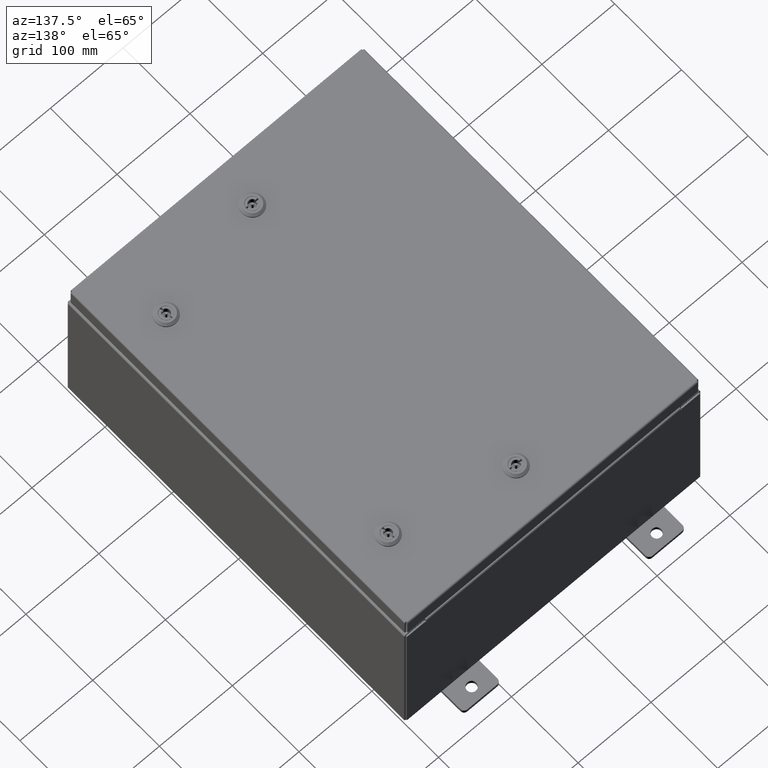
[diagram: clean part render]
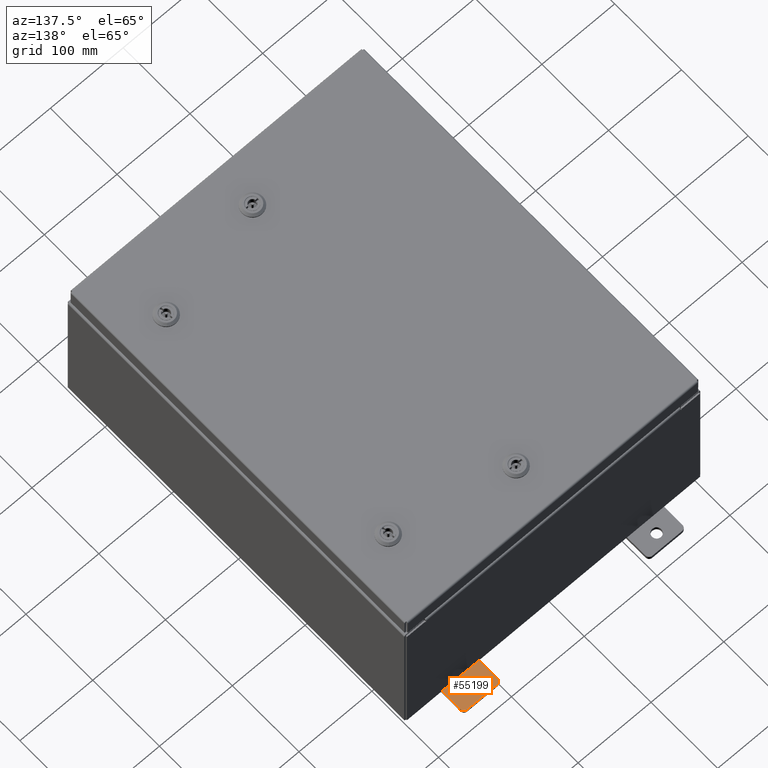
[diagram: same view with one face highlighted and labeled with its STEP entity id]
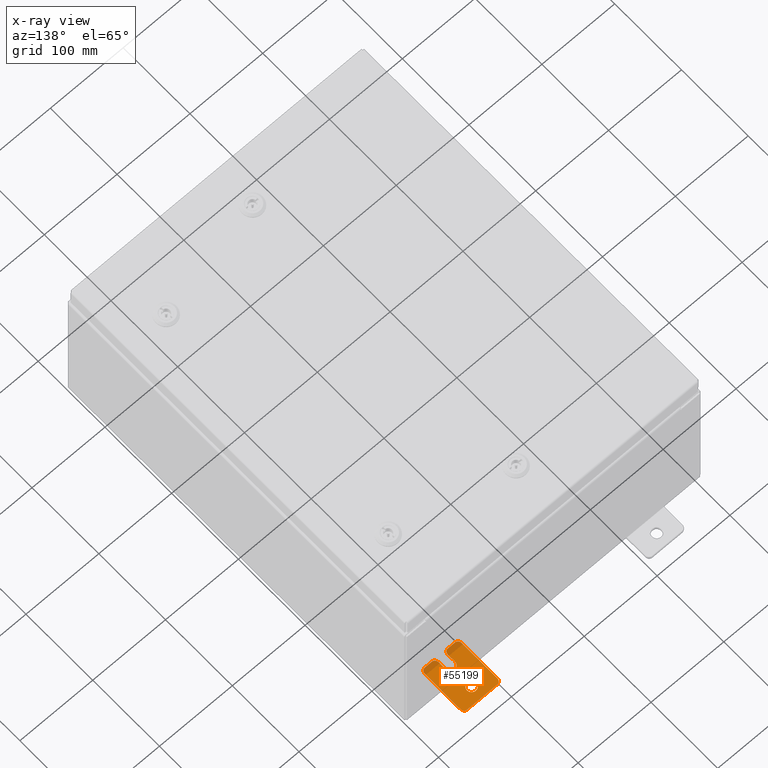
[diagram: x-ray of the same camera — body ghosted, the highlighted face saturated]
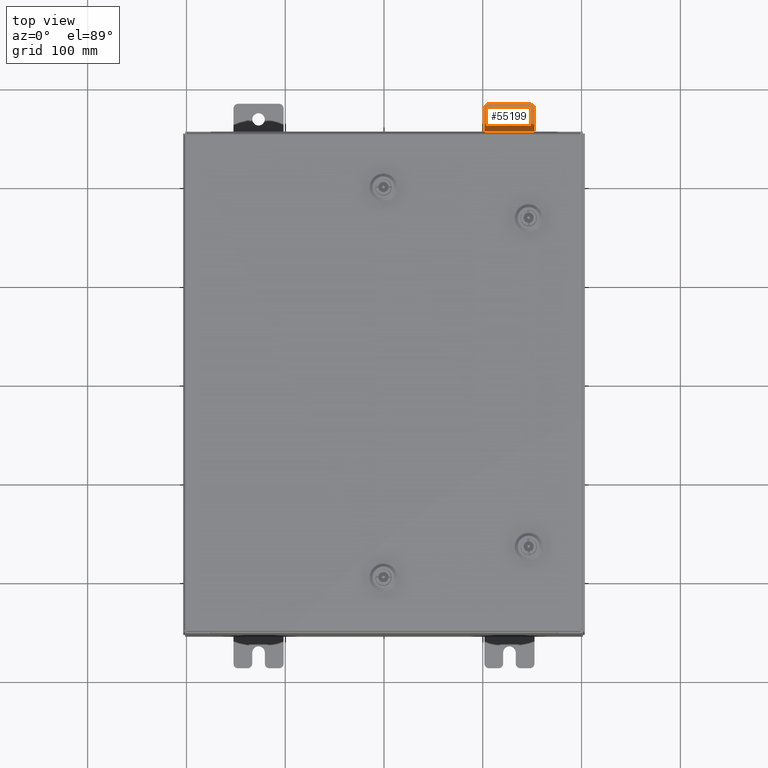
[diagram: same view with one face highlighted and labeled with its STEP entity id]
A machine part, auxiliary view. The second image highlights one B-rep face of the part: STEP entity #55199.
The next image is the same camera in x-ray: the body ghosted, the highlighted face saturated — about 9% of this face is hidden behind the body in this view.
A second angle (top view) of the same face is appended — the face is thin or edge-on in the first view.
In plain terms, the highlighted planar face has unit normal (0, 0, 1).
Its self-contained STEP definition (entity closure, byte-faithful):
#23 = CIRCLE ( 'NONE', #11023, 0.1900000000000011100 ) ;
#415 = VERTEX_POINT ( 'NONE', #42591 ) ;
#590 = DIRECTION ( 'NONE',  ( -5.163192708025533800E-017, 0.0000000000000000000, -1.000000000000000000 ) ) ;
#1235 = CIRCLE ( 'NONE', #30597, 0.2499999999999999200 ) ;
#1388 = CIRCLE ( 'NONE', #45253, 0.2499999999999999200 ) ;
#1498 = CARTESIAN_POINT ( 'NONE',  ( 0.0000000000000000000, -1.060000000000004500, -1.000000000000006400 ) ) ;
#1920 = VECTOR ( 'NONE', #42302, 39.37007874015748100 ) ;
#2123 = EDGE_CURVE ( 'NONE', #49109, #51675, #22449, .T. ) ;
#2598 = DIRECTION ( 'NONE',  ( -5.163192708025533800E-017, 0.0000000000000000000, -1.000000000000000000 ) ) ;
#4092 = EDGE_CURVE ( 'NONE', #6872, #51853, #56644, .T. ) ;
#4560 = DIRECTION ( 'NONE',  ( 1.000000000000000000, 0.0000000000000000000, -0.0000000000000000000 ) ) ;
#4653 = EDGE_CURVE ( 'NONE', #51675, #12514, #42879, .T. ) ;
#4712 = LINE ( 'NONE', #18527, #46607 ) ;
#5362 = LINE ( 'NONE', #58839, #41162 ) ;
#5426 = FACE_OUTER_BOUND ( 'NONE', #56171, .T. ) ;
#5752 = CARTESIAN_POINT ( 'NONE',  ( 0.0000000000000000000, 1.249999999999997300, 0.8099999999999935000 ) ) ;
#5946 = ORIENTED_EDGE ( 'NONE', *, *, #35362, .T. ) ;
#6152 = EDGE_CURVE ( 'NONE', #26675, #6872, #58049, .T. ) ;
#6231 = EDGE_CURVE ( 'NONE', #43940, #13540, #4712, .T. ) ;
#6319 = CARTESIAN_POINT ( 'NONE',  ( 0.0000000000000000000, 1.059999999999993600, -0.8100000000000089400 ) ) ;
#6548 = EDGE_CURVE ( 'NONE', #55660, #43940, #34400, .T. ) ;
#6816 = CIRCLE ( 'NONE', #22639, 0.1900000000000011100 ) ;
#6872 = VERTEX_POINT ( 'NONE', #50873 ) ;
#6885 = CARTESIAN_POINT ( 'NONE',  ( 0.0000000000000000000, -1.060000000000001200, 0.9999999999999988900 ) ) ;
#7179 = AXIS2_PLACEMENT_3D ( 'NONE', #48697, #19496, #53599 ) ;
#8237 = CARTESIAN_POINT ( 'NONE',  ( 0.0000000000000000000, -1.250000000000005600, -1.000000000000006200 ) ) ;
#8275 = ORIENTED_EDGE ( 'NONE', *, *, #38148, .T. ) ;
#8405 = ORIENTED_EDGE ( 'NONE', *, *, #22742, .T. ) ;
#9532 = VECTOR ( 'NONE', #27860, 39.37007874015748100 ) ;
#9654 = EDGE_CURVE ( 'NONE', #13540, #30259, #53333, .T. ) ;
#9689 = CARTESIAN_POINT ( 'NONE',  ( 0.0000000000000000000, 1.059999999999993400, -1.000000000000010000 ) ) ;
#9781 = EDGE_CURVE ( 'NONE', #34572, #26675, #23, .T. ) ;
#10013 = DIRECTION ( 'NONE',  ( 6.556435184794182400E-016, 1.000000000000000000, 0.0000000000000000000 ) ) ;
#10226 = CARTESIAN_POINT ( 'NONE',  ( 0.0000000000000000000, -1.060000000000002100, 0.4400000000000016700 ) ) ;
#11023 = AXIS2_PLACEMENT_3D ( 'NONE', #14723, #48836, #19630 ) ;
#11218 = DIRECTION ( 'NONE',  ( 0.0000000000000000000, 0.0000000000000000000, -1.000000000000000000 ) ) ;
#12514 = VERTEX_POINT ( 'NONE', #29176 ) ;
#12625 = VECTOR ( 'NONE', #22375, 39.37007874015748100 ) ;
#13425 = CARTESIAN_POINT ( 'NONE',  ( 0.0000000000000000000, -1.250000000000004700, -0.4400000000000002200 ) ) ;
#13540 = VERTEX_POINT ( 'NONE', #46896 ) ;
#14723 = CARTESIAN_POINT ( 'NONE',  ( 0.0000000000000000000, -1.060000000000001600, 0.8099999999999978300 ) ) ;
#15069 = DIRECTION ( 'NONE',  ( 0.0000000000000000000, 0.0000000000000000000, -1.000000000000000000 ) ) ;
#15782 = EDGE_CURVE ( 'NONE', #12514, #34572, #5362, .T. ) ;
#16735 = EDGE_CURVE ( 'NONE', #32947, #49109, #6816, .T. ) ;
#18527 = CARTESIAN_POINT ( 'NONE',  ( 0.0000000000000000000, -1.250000000000002200, 0.9999999999999992200 ) ) ;
#19496 = DIRECTION ( 'NONE',  ( 1.000000000000000000, 0.0000000000000000000, -0.0000000000000000000 ) ) ;
#19630 = DIRECTION ( 'NONE',  ( 0.0000000000000000000, 0.0000000000000000000, -1.000000000000000000 ) ) ;
#20155 = CARTESIAN_POINT ( 'NONE',  ( 4.780733988912460100E-016, -0.6249999999999993300, 5.858939755051854500E-017 ) ) ;
#20252 = AXIS2_PLACEMENT_3D ( 'NONE', #45270, #25870, #59982 ) ;
#22375 = DIRECTION ( 'NONE',  ( -6.556435184794182400E-016, -1.000000000000000000, -1.639108796198545600E-016 ) ) ;
#22449 = LINE ( 'NONE', #57041, #9532 ) ;
#22541 = EDGE_LOOP ( 'NONE', ( #46151, #34221 ) ) ;
#22625 = AXIS2_PLACEMENT_3D ( 'NONE', #10226, #44285, #15069 ) ;
#22639 = AXIS2_PLACEMENT_3D ( 'NONE', #6319, #40388, #11218 ) ;
#22706 = EDGE_CURVE ( 'NONE', #57668, #59440, #1235, .T. ) ;
#22742 = EDGE_CURVE ( 'NONE', #415, #55660, #62933, .T. ) ;
#23426 = DIRECTION ( 'NONE',  ( 0.0000000000000000000, -1.639108796198553600E-015, -1.000000000000000000 ) ) ;
#24425 = CARTESIAN_POINT ( 'NONE',  ( 6.829619984160658000E-017, -1.250000000000003800, 0.2500000000000005000 ) ) ;
#24721 = CARTESIAN_POINT ( 'NONE',  ( 1.928684683526964400E-016, -1.060000000000003400, -0.2499999999999994400 ) ) ;
#25041 = DIRECTION ( 'NONE',  ( -6.523827964459551700E-016, -1.000000000000000000, 0.0000000000000000000 ) ) ;
#25113 = DIRECTION ( 'NONE',  ( 1.000000000000000000, 0.0000000000000000000, -0.0000000000000000000 ) ) ;
#25870 = DIRECTION ( 'NONE',  ( 1.000000000000000000, 0.0000000000000000000, -0.0000000000000000000 ) ) ;
#26675 = VERTEX_POINT ( 'NONE', #60830 ) ;
#27373 = CARTESIAN_POINT ( 'NONE',  ( 0.0000000000000000000, 1.249999999999994700, -0.8100000000000092700 ) ) ;
#27727 = CARTESIAN_POINT ( 'NONE',  ( 0.0000000000000000000, -1.250000000000002200, 0.9999999999999992200 ) ) ;
#27860 = DIRECTION ( 'NONE',  ( 0.0000000000000000000, 1.639108796198553600E-015, 1.000000000000000000 ) ) ;
#29159 = CIRCLE ( 'NONE', #30341, 0.2499999999999999200 ) ;
#29176 = CARTESIAN_POINT ( 'NONE',  ( 0.0000000000000000000, 1.059999999999996500, 0.9999999999999953400 ) ) ;
#29645 = DIRECTION ( 'NONE',  ( 0.0000000000000000000, -1.000000000000000000, 1.639108796198558100E-015 ) ) ;
#29740 = DIRECTION ( 'NONE',  ( 1.000000000000000000, -0.0000000000000000000, -5.163192708025532000E-017 ) ) ;
#30259 = VERTEX_POINT ( 'NONE', #1498 ) ;
#30341 = AXIS2_PLACEMENT_3D ( 'NONE', #20155, #54260, #25041 ) ;
#30597 = AXIS2_PLACEMENT_3D ( 'NONE', #60961, #31759, #2598 ) ;
#31228 = CARTESIAN_POINT ( 'NONE',  ( 1.928684683526972300E-016, -1.060000000000002100, 0.2500000000000005000 ) ) ;
#31759 = DIRECTION ( 'NONE',  ( 1.000000000000000000, -0.0000000000000000000, -5.163192708025532000E-017 ) ) ;
#32113 = VECTOR ( 'NONE', #32840, 39.37007874015748100 ) ;
#32840 = DIRECTION ( 'NONE',  ( 0.0000000000000000000, -1.639108796198553600E-015, -1.000000000000000000 ) ) ;
#32947 = VERTEX_POINT ( 'NONE', #9689 ) ;
#33728 = CARTESIAN_POINT ( 'NONE',  ( 0.0000000000000000000, -1.060000000000004100, -0.8100000000000050500 ) ) ;
#34221 = ORIENTED_EDGE ( 'NONE', *, *, #46162, .F. ) ;
#34400 = CIRCLE ( 'NONE', #35003, 0.1900000000000011100 ) ;
#34572 = VERTEX_POINT ( 'NONE', #6885 ) ;
#34988 = ORIENTED_EDGE ( 'NONE', *, *, #2123, .T. ) ;
#35003 = AXIS2_PLACEMENT_3D ( 'NONE', #54338, #25113, #59234 ) ;
#35362 = EDGE_CURVE ( 'NONE', #30259, #32947, #36220, .T. ) ;
#36220 = LINE ( 'NONE', #8237, #1920 ) ;
#38148 = EDGE_CURVE ( 'NONE', #42951, #415, #29159, .T. ) ;
#38219 = VECTOR ( 'NONE', #10013, 39.37007874015748100 ) ;
#38469 = ORIENTED_EDGE ( 'NONE', *, *, #6548, .T. ) ;
#38630 = DIRECTION ( 'NONE',  ( 0.0000000000000000000, 0.0000000000000000000, -1.000000000000000000 ) ) ;
#40388 = DIRECTION ( 'NONE',  ( 1.000000000000000000, 0.0000000000000000000, -0.0000000000000000000 ) ) ;
#40547 = ORIENTED_EDGE ( 'NONE', *, *, #9781, .T. ) ;
#41162 = VECTOR ( 'NONE', #29645, 39.37007874015748100 ) ;
#41426 = CARTESIAN_POINT ( 'NONE',  ( 0.0000000000000000000, -0.6249999999999992200, 0.2500000000000005000 ) ) ;
#42302 = DIRECTION ( 'NONE',  ( 0.0000000000000000000, 1.000000000000000000, -1.639108796198558100E-015 ) ) ;
#42591 = CARTESIAN_POINT ( 'NONE',  ( 4.780733988912460100E-016, -0.6249999999999993300, -0.2499999999999998600 ) ) ;
#42731 = FACE_BOUND ( 'NONE', #22541, .T. ) ;
#42879 = CIRCLE ( 'NONE', #7179, 0.1900000000000011100 ) ;
#42951 = VERTEX_POINT ( 'NONE', #41426 ) ;
#43940 = VERTEX_POINT ( 'NONE', #13425 ) ;
#44285 = DIRECTION ( 'NONE',  ( 1.000000000000000000, 0.0000000000000000000, -0.0000000000000000000 ) ) ;
#45253 = AXIS2_PLACEMENT_3D ( 'NONE', #58925, #29740, #590 ) ;
#45270 = CARTESIAN_POINT ( 'NONE',  ( 0.0000000000000000000, 0.0000000000000000000, 0.0000000000000000000 ) ) ;
#45381 = ORIENTED_EDGE ( 'NONE', *, *, #16735, .T. ) ;
#46151 = ORIENTED_EDGE ( 'NONE', *, *, #22706, .F. ) ;
#46162 = EDGE_CURVE ( 'NONE', #59440, #57668, #1388, .T. ) ;
#46607 = VECTOR ( 'NONE', #23426, 39.37007874015748100 ) ;
#46896 = CARTESIAN_POINT ( 'NONE',  ( 0.0000000000000000000, -1.250000000000005300, -0.8100000000000047200 ) ) ;
#48697 = CARTESIAN_POINT ( 'NONE',  ( 0.0000000000000000000, 1.059999999999996300, 0.8099999999999938400 ) ) ;
#48836 = DIRECTION ( 'NONE',  ( 1.000000000000000000, 0.0000000000000000000, -0.0000000000000000000 ) ) ;
#49109 = VERTEX_POINT ( 'NONE', #27373 ) ;
#50873 = CARTESIAN_POINT ( 'NONE',  ( 0.0000000000000000000, -1.250000000000003100, 0.4400000000000020000 ) ) ;
#50997 = ORIENTED_EDGE ( 'NONE', *, *, #4092, .T. ) ;
#51139 = LINE ( 'NONE', #24425, #38219 ) ;
#51675 = VERTEX_POINT ( 'NONE', #5752 ) ;
#51853 = VERTEX_POINT ( 'NONE', #31228 ) ;
#51892 = CARTESIAN_POINT ( 'NONE',  ( 3.910348609313009100E-016, 0.6249999999999992200, -0.2499999999999999200 ) ) ;
#52170 = CARTESIAN_POINT ( 'NONE',  ( 4.168508244714285900E-016, 0.6249999999999992200, 0.2499999999999999200 ) ) ;
#52788 = ORIENTED_EDGE ( 'NONE', *, *, #4653, .T. ) ;
#53333 = CIRCLE ( 'NONE', #54674, 0.1900000000000011100 ) ;
#53588 = ORIENTED_EDGE ( 'NONE', *, *, #15782, .T. ) ;
#53599 = DIRECTION ( 'NONE',  ( 0.0000000000000000000, 0.0000000000000000000, -1.000000000000000000 ) ) ;
#53636 = ORIENTED_EDGE ( 'NONE', *, *, #6152, .T. ) ;
#54260 = DIRECTION ( 'NONE',  ( -1.000000000000000000, 6.523827964459549700E-016, 5.163192708025532000E-017 ) ) ;
#54338 = CARTESIAN_POINT ( 'NONE',  ( 0.0000000000000000000, -1.060000000000003400, -0.4400000000000005000 ) ) ;
#54403 = EDGE_CURVE ( 'NONE', #51853, #42951, #51139, .T. ) ;
#54674 = AXIS2_PLACEMENT_3D ( 'NONE', #33728, #4560, #38630 ) ;
#55077 = PLANE ( 'NONE',  #20252 ) ;
#55199 = ADVANCED_FACE ( 'NONE', ( #42731, #5426 ), #55077, .T. ) ;
#55660 = VERTEX_POINT ( 'NONE', #24721 ) ;
#55833 = ORIENTED_EDGE ( 'NONE', *, *, #54403, .T. ) ;
#55977 = ORIENTED_EDGE ( 'NONE', *, *, #6231, .T. ) ;
#56171 = EDGE_LOOP ( 'NONE', ( #53588, #40547, #53636, #50997, #55833, #8275, #8405, #38469, #55977, #60711, #5946, #45381, #34988, #52788 ) ) ;
#56480 = CARTESIAN_POINT ( 'NONE',  ( 4.780733988912460100E-016, -0.6249999999999993300, -0.2499999999999993900 ) ) ;
#56644 = CIRCLE ( 'NONE', #22625, 0.1900000000000011400 ) ;
#57041 = CARTESIAN_POINT ( 'NONE',  ( 0.0000000000000000000, 1.249999999999994200, -1.000000000000010400 ) ) ;
#57668 = VERTEX_POINT ( 'NONE', #51892 ) ;
#58049 = LINE ( 'NONE', #27727, #32113 ) ;
#58839 = CARTESIAN_POINT ( 'NONE',  ( 0.0000000000000000000, 1.249999999999997600, 0.9999999999999951200 ) ) ;
#58925 = CARTESIAN_POINT ( 'NONE',  ( 4.039428427013647300E-016, 0.6249999999999992200, -9.783840404509077400E-018 ) ) ;
#59234 = DIRECTION ( 'NONE',  ( 0.0000000000000000000, 0.0000000000000000000, -1.000000000000000000 ) ) ;
#59440 = VERTEX_POINT ( 'NONE', #52170 ) ;
#59982 = DIRECTION ( 'NONE',  ( -0.0000000000000000000, 0.0000000000000000000, -1.000000000000000000 ) ) ;
#60711 = ORIENTED_EDGE ( 'NONE', *, *, #9654, .T. ) ;
#60830 = CARTESIAN_POINT ( 'NONE',  ( 0.0000000000000000000, -1.250000000000002400, 0.8099999999999980500 ) ) ;
#60961 = CARTESIAN_POINT ( 'NONE',  ( 4.039428427013647300E-016, 0.6249999999999992200, -9.783840404509077400E-018 ) ) ;
#62933 = LINE ( 'NONE', #56480, #12625 ) ;